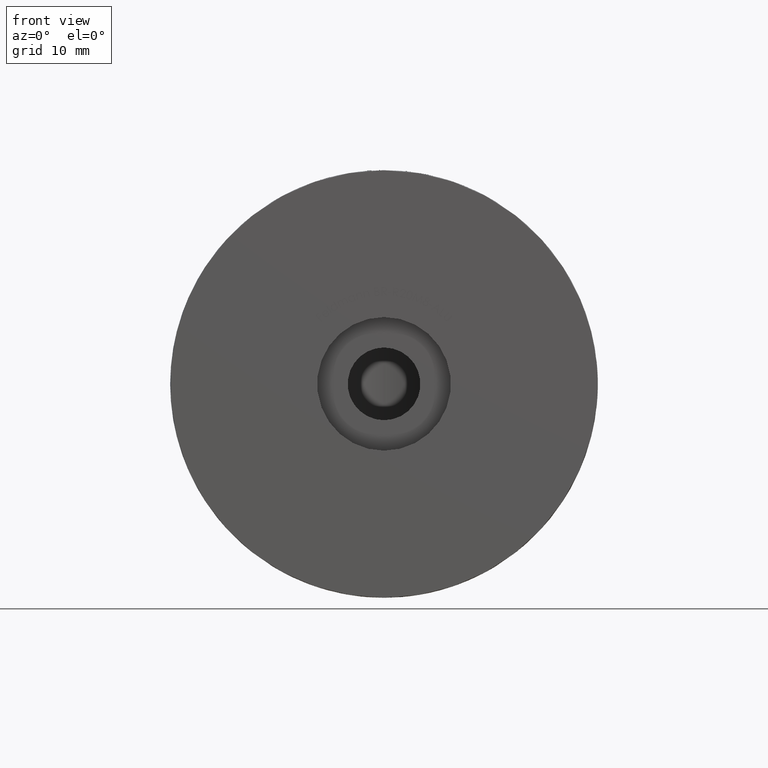
[diagram: clean part render]
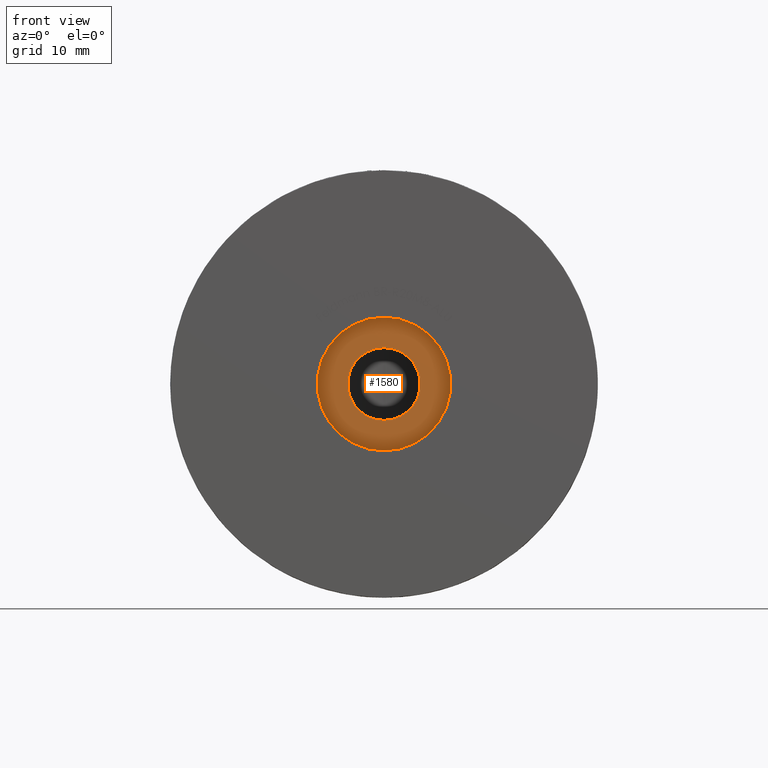
[diagram: same view with one face highlighted and labeled with its STEP entity id]
A machine part, front view. The second image highlights one B-rep face of the part: STEP entity #1580.
In plain terms, the highlighted planar face has unit normal (0, -1, 0).
Its self-contained STEP definition (entity closure, byte-faithful):
#667 = CARTESIAN_POINT ( 'NONE',  ( 0.000000000000000000, 4.000000000000000000, -3.399999999999998579 ) ) ;
#674 = EDGE_CURVE ( 'NONE', #1340, #9361, #4550, .T. ) ;
#712 = ORIENTED_EDGE ( 'NONE', *, *, #674, .F. ) ;
#1340 = VERTEX_POINT ( 'NONE', #667 ) ;
#1580 = ADVANCED_FACE ( 'NONE', ( #16151, #15946 ), #10602, .T. ) ;
#1948 = CARTESIAN_POINT ( 'NONE',  ( 7.654042494670957606E-16, 4.000000000000000000, 6.250000000000000000 ) ) ;
#2761 = CIRCLE ( 'NONE', #9425, 6.250000000000000000 ) ;
#2999 = DIRECTION ( 'NONE',  ( 0.000000000000000000, -0.000000000000000000, -1.000000000000000000 ) ) ;
#3122 = EDGE_CURVE ( 'NONE', #9349, #12945, #5894, .T. ) ;
#3349 = CARTESIAN_POINT ( 'NONE',  ( 0.000000000000000000, 4.000000000000000000, 0.000000000000000000 ) ) ;
#3495 = AXIS2_PLACEMENT_3D ( 'NONE', #16044, #13482, #14803 ) ;
#4550 = CIRCLE ( 'NONE', #7714, 3.399999999999998579 ) ;
#4626 = DIRECTION ( 'NONE',  ( 0.000000000000000000, 0.000000000000000000, -1.000000000000000000 ) ) ;
#4760 = CIRCLE ( 'NONE', #4785, 3.399999999999998579 ) ;
#4785 = AXIS2_PLACEMENT_3D ( 'NONE', #9058, #6676, #11679 ) ;
#5894 = CIRCLE ( 'NONE', #3495, 6.250000000000000000 ) ;
#6573 = DIRECTION ( 'NONE',  ( 0.000000000000000000, 0.000000000000000000, -1.000000000000000000 ) ) ;
#6676 = DIRECTION ( 'NONE',  ( -0.000000000000000000, -1.000000000000000000, -0.000000000000000000 ) ) ;
#6759 = CARTESIAN_POINT ( 'NONE',  ( 0.000000000000000000, 4.000000000000000000, 0.000000000000000000 ) ) ;
#7714 = AXIS2_PLACEMENT_3D ( 'NONE', #7752, #15540, #6573 ) ;
#7752 = CARTESIAN_POINT ( 'NONE',  ( 0.000000000000000000, 4.000000000000000000, 0.000000000000000000 ) ) ;
#8133 = CARTESIAN_POINT ( 'NONE',  ( 0.000000000000000000, 4.000000000000000000, -6.250000000000000000 ) ) ;
#8353 = CARTESIAN_POINT ( 'NONE',  ( 4.163799117100998587E-16, 4.000000000000000000, 3.399999999999998579 ) ) ;
#8914 = AXIS2_PLACEMENT_3D ( 'NONE', #6759, #10664, #2999 ) ;
#9058 = CARTESIAN_POINT ( 'NONE',  ( 0.000000000000000000, 4.000000000000000000, 0.000000000000000000 ) ) ;
#9349 = VERTEX_POINT ( 'NONE', #8133 ) ;
#9361 = VERTEX_POINT ( 'NONE', #8353 ) ;
#9425 = AXIS2_PLACEMENT_3D ( 'NONE', #3349, #12277, #4626 ) ;
#9671 = ORIENTED_EDGE ( 'NONE', *, *, #11375, .F. ) ;
#10602 = PLANE ( 'NONE',  #8914 ) ;
#10664 = DIRECTION ( 'NONE',  ( 0.000000000000000000, -1.000000000000000000, 0.000000000000000000 ) ) ;
#11375 = EDGE_CURVE ( 'NONE', #9361, #1340, #4760, .T. ) ;
#11679 = DIRECTION ( 'NONE',  ( 0.000000000000000000, 0.000000000000000000, -1.000000000000000000 ) ) ;
#11794 = ORIENTED_EDGE ( 'NONE', *, *, #3122, .T. ) ;
#12277 = DIRECTION ( 'NONE',  ( 0.000000000000000000, -1.000000000000000000, 0.000000000000000000 ) ) ;
#12617 = EDGE_LOOP ( 'NONE', ( #11794, #14495 ) ) ;
#12945 = VERTEX_POINT ( 'NONE', #1948 ) ;
#13022 = EDGE_LOOP ( 'NONE', ( #712, #9671 ) ) ;
#13482 = DIRECTION ( 'NONE',  ( 0.000000000000000000, -1.000000000000000000, 0.000000000000000000 ) ) ;
#14495 = ORIENTED_EDGE ( 'NONE', *, *, #16615, .T. ) ;
#14803 = DIRECTION ( 'NONE',  ( 0.000000000000000000, 0.000000000000000000, -1.000000000000000000 ) ) ;
#15540 = DIRECTION ( 'NONE',  ( -0.000000000000000000, -1.000000000000000000, -0.000000000000000000 ) ) ;
#15946 = FACE_OUTER_BOUND ( 'NONE', #12617, .T. ) ;
#16044 = CARTESIAN_POINT ( 'NONE',  ( 0.000000000000000000, 4.000000000000000000, 0.000000000000000000 ) ) ;
#16151 = FACE_BOUND ( 'NONE', #13022, .T. ) ;
#16615 = EDGE_CURVE ( 'NONE', #12945, #9349, #2761, .T. ) ;